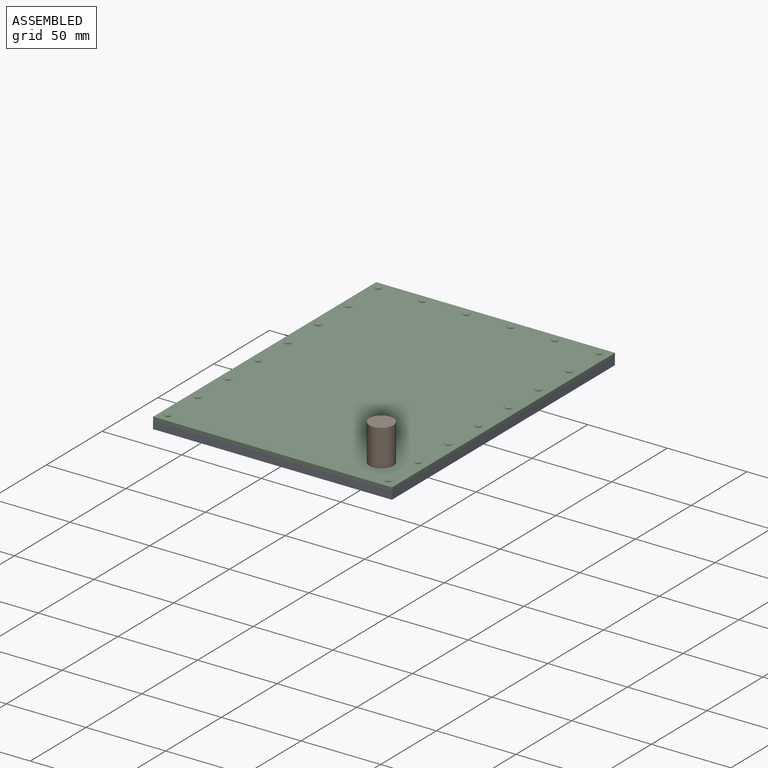
[diagram: assembled view]
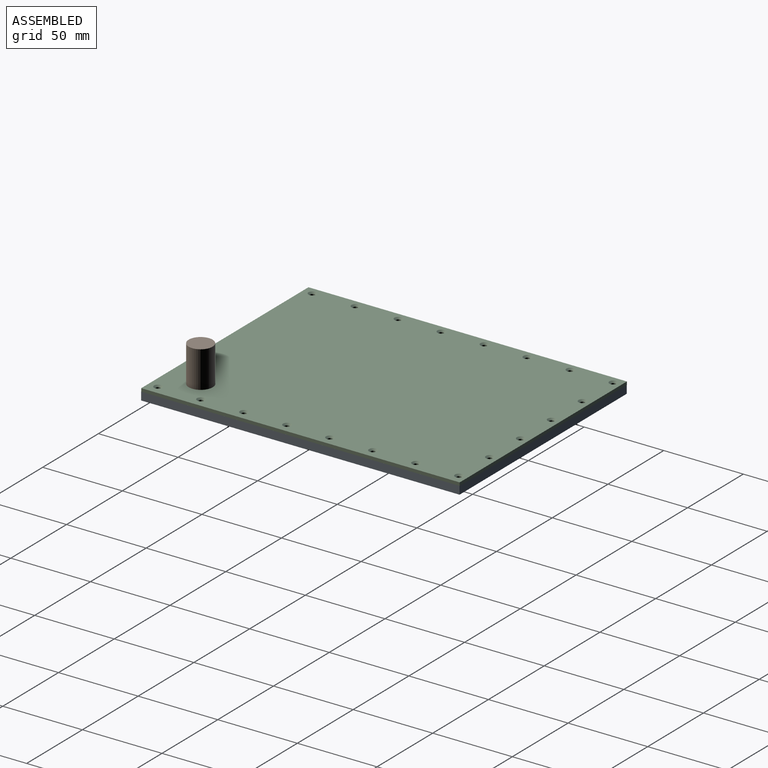
[diagram: assembled view, second angle]
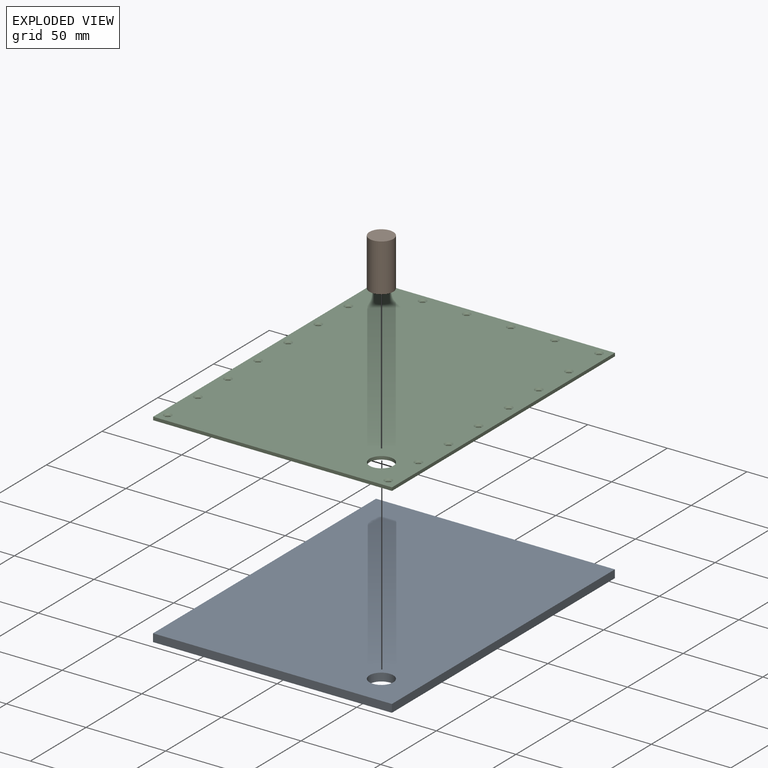
[diagram: exploded view]
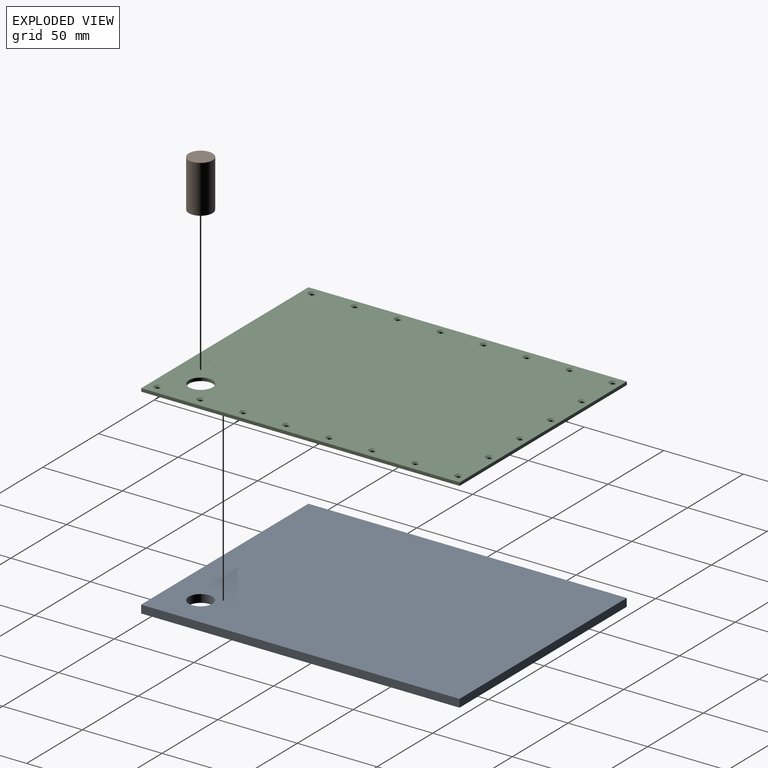
[diagram: exploded view, second angle]
ASSEMBLY  parts=3 mates=2
PART A: 7 faces, bbox 150x200x5 mm
  f0: plane 150x5mm, normal (0,1,0), area 750mm2, adj f1,f4,f5,f6
  f1: plane 200x5mm, normal (-1,0,0), area 1000mm2, adj f0,f2,f5,f6
  f2: plane 150x5mm, normal (0,-1,0), area 750mm2, adj f1,f4,f5,f6
  f3: cylinder r=7.5mm len=15mm, axis (0,0,-1), area 235.6mm2, adj f5,f6
  f4: plane 200x5mm, normal (1,0,0), area 1000mm2, adj f0,f2,f5,f6
  f5: plane 200x150mm, normal (0,0,1), area 29823.3mm2, adj f0,f1,f2,f3,f4
  f6: plane 200x150mm, normal (0,0,-1), area 29823.3mm2, adj f0,f1,f2,f3,f4
PART B: 3 faces, bbox 15x15x30 mm
  f0: cylinder r=7.5mm len=30mm, axis (0,0,-1), area 1413.7mm2, adj f1,f2
  f1: plane 15x15mm, normal (0,0,1), area 176.7mm2, adj f0
  f2: plane 15x15mm, normal (0,0,-1), area 176.7mm2, adj f0
PART C: 47 faces, bbox 150x200x2 mm
  f0: plane 150x2mm, normal (0,1,0), area 300mm2, adj f1,f24,f25,f26
  f1: plane 200x2mm, normal (-1,0,0), area 400mm2, adj f0,f2,f25,f26
  f2: plane 150x2mm, normal (0,-1,0), area 300mm2, adj f1,f24,f25,f26
  f3: cylinder r=1.5mm len=3mm, axis (0,0,-1), area 9.4mm2, adj f26,f46
  f4: cylinder r=1.5mm len=3mm, axis (0,0,-1), area 9.4mm2, adj f26,f45
  f5: cylinder r=1.5mm len=3mm, axis (0,0,-1), area 9.4mm2, adj f26,f44
  f6: cylinder r=1.5mm len=3mm, axis (0,0,-1), area 9.4mm2, adj f26,f43
  f7: cylinder r=1.5mm len=3mm, axis (0,0,-1), area 9.4mm2, adj f26,f42
  f8: cylinder r=1.5mm len=3mm, axis (0,0,-1), area 9.4mm2, adj f26,f41
  f9: cylinder r=1.5mm len=3mm, axis (0,0,-1), area 9.4mm2, adj f26,f40
  f10: cylinder r=1.5mm len=3mm, axis (0,0,-1), area 9.4mm2, adj f26,f39
  f11: cylinder r=1.5mm len=3mm, axis (0,0,-1), area 9.4mm2, adj f26,f27
  f12: cylinder r=1.5mm len=3mm, axis (0,0,-1), area 9.4mm2, adj f26,f28
  f13: cylinder r=1.5mm len=3mm, axis (0,0,-1), area 9.4mm2, adj f26,f29
  f14: cylinder r=1.5mm len=3mm, axis (0,0,-1), area 9.4mm2, adj f26,f30
  f15: cylinder r=1.5mm len=3mm, axis (0,0,-1), area 9.4mm2, adj f26,f31
  f16: cylinder r=1.5mm len=3mm, axis (0,0,-1), area 9.4mm2, adj f26,f32
  f17: cylinder r=1.5mm len=3mm, axis (0,0,-1), area 9.4mm2, adj f26,f33
  f18: cylinder r=1.5mm len=3mm, axis (0,0,-1), area 9.4mm2, adj f26,f34
  f19: cylinder r=1.5mm len=3mm, axis (0,0,-1), area 9.4mm2, adj f26,f35
  f20: cylinder r=1.5mm len=3mm, axis (0,0,-1), area 9.4mm2, adj f26,f36
  f21: cylinder r=1.5mm len=3mm, axis (0,0,-1), area 9.4mm2, adj f26,f37
  f22: cylinder r=1.5mm len=3mm, axis (0,0,-1), area 9.4mm2, adj f26,f38
  f23: cylinder r=7.5mm len=15mm, axis (0,0,-1), area 94.2mm2, adj f25,f26
  f24: plane 200x2mm, normal (1,0,0), area 400mm2, adj f0,f2,f25,f26
  f25: plane 200x150mm, normal (0,0,1), area 29430.6mm2, adj f0,f1,f2,f23,f24,f27,f28,f29
  f26: plane 200x150mm, normal (0,0,-1), area 29681.9mm2, adj f0,f1,f2,f3,f4,f5,f6,f7
  f27: cone r=1.5mm half-angle=45deg, axis (0,0,1), area 17.8mm2, adj f11,f25
  f28: cone r=1.5mm half-angle=45deg, axis (0,0,1), area 17.8mm2, adj f12,f25
  f29: cone r=1.5mm half-angle=45deg, axis (0,0,1), area 17.8mm2, adj f13,f25
  f30: cone r=1.5mm half-angle=45deg, axis (0,0,1), area 17.8mm2, adj f14,f25
  f31: cone r=1.5mm half-angle=45deg, axis (0,0,1), area 17.8mm2, adj f15,f25
  f32: cone r=1.5mm half-angle=45deg, axis (0,0,1), area 17.8mm2, adj f16,f25
  f33: cone r=1.5mm half-angle=45deg, axis (0,0,1), area 17.8mm2, adj f17,f25
  f34: cone r=1.5mm half-angle=45deg, axis (0,0,1), area 17.8mm2, adj f18,f25
  f35: cone r=1.5mm half-angle=45deg, axis (0,0,1), area 17.8mm2, adj f19,f25
  f36: cone r=1.5mm half-angle=45deg, axis (0,0,1), area 17.8mm2, adj f20,f25
  f37: cone r=1.5mm half-angle=45deg, axis (0,0,1), area 17.8mm2, adj f21,f25
  f38: cone r=1.5mm half-angle=45deg, axis (0,0,1), area 17.8mm2, adj f22,f25
  f39: cone r=1.5mm half-angle=45deg, axis (0,0,1), area 17.8mm2, adj f10,f25
  f40: cone r=1.5mm half-angle=45deg, axis (0,0,1), area 17.8mm2, adj f9,f25
  f41: cone r=1.5mm half-angle=45deg, axis (0,0,1), area 17.8mm2, adj f8,f25
  f42: cone r=1.5mm half-angle=45deg, axis (0,0,1), area 17.8mm2, adj f7,f25
  f43: cone r=1.5mm half-angle=45deg, axis (0,0,1), area 17.8mm2, adj f6,f25
  f44: cone r=1.5mm half-angle=45deg, axis (0,0,1), area 17.8mm2, adj f5,f25
  f45: cone r=1.5mm half-angle=45deg, axis (0,0,1), area 17.8mm2, adj f4,f25
  f46: cone r=1.5mm half-angle=45deg, axis (0,0,1), area 17.8mm2, adj f3,f25
PLACE A t=(-155.91,48.86,-11.26)mm
PLACE B t=(18.79,-48.16,-11.26)mm
PLACE C t=(-374.05,32.68,-6.26)mm
MATE fastened C.f26 <-> A.f5  axis (0,0,-1) through (-151.97,48.66,-6.26)mm
MATE fastened B.f0 <-> A.f3  axis (0,0,-1) through (-98.66,-29.8,-11.26)mm
